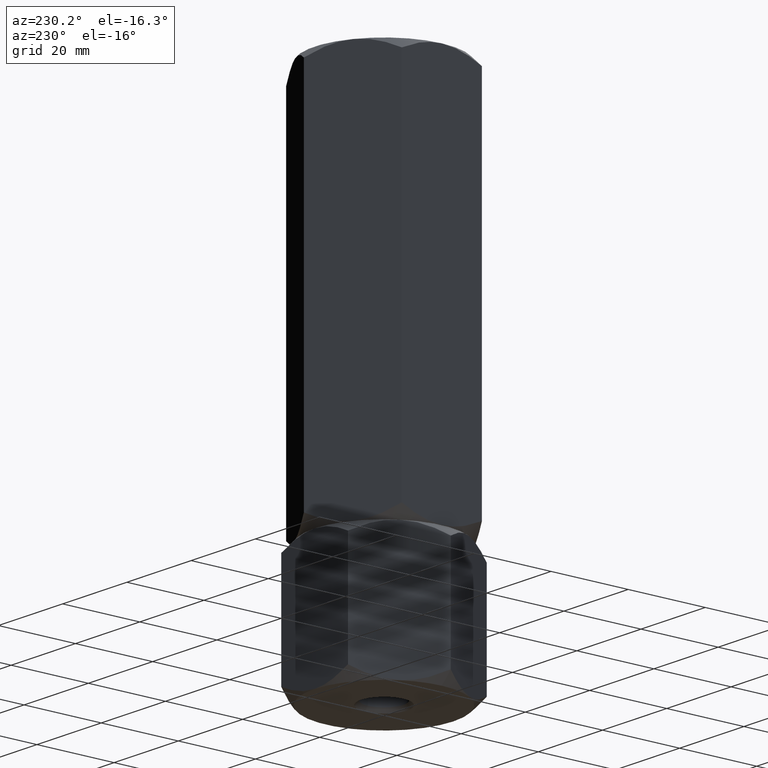
[diagram: clean part render]
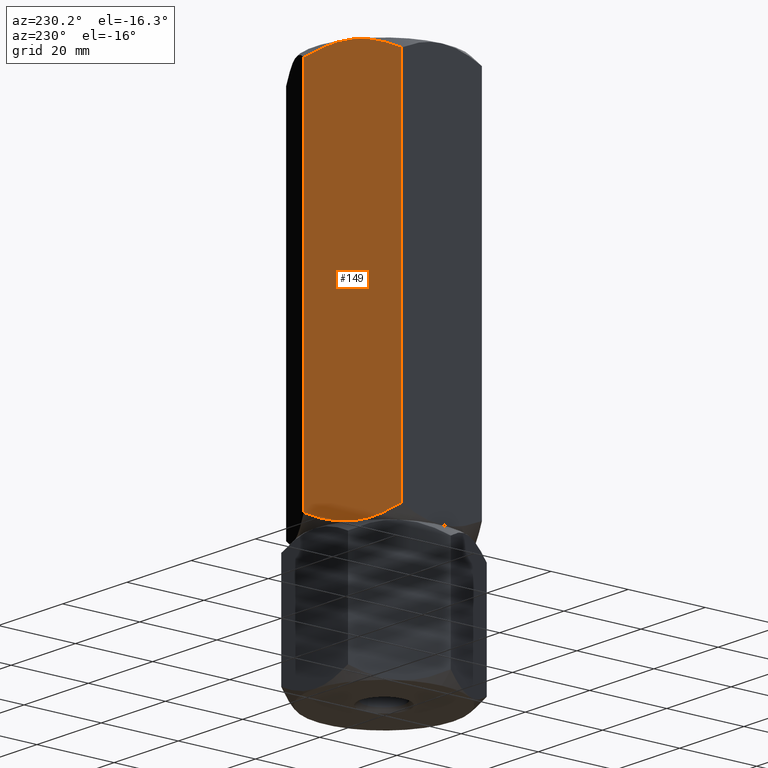
[diagram: same view with one face highlighted and labeled with its STEP entity id]
A machine part, auxiliary view. The second image highlights one B-rep face of the part: STEP entity #149.
In plain terms, the highlighted planar face has unit normal (0.5, -0.866, 0).
Its self-contained STEP definition (entity closure, byte-faithful):
#26 = CARTESIAN_POINT ( 'NONE',  ( -12.90267270303527525, 13.33524813246348373, 33.87041888916230903 ) ) ;
#77 = EDGE_CURVE ( 'NONE', #247, #1672, #545, .T. ) ;
#103 = EDGE_CURVE ( 'NONE', #1672, #1052, #774, .T. ) ;
#143 = CARTESIAN_POINT ( 'NONE',  ( -15.13928418966203360, 12.04393988858691600, 132.0607586318289748 ) ) ;
#149 = ADVANCED_FACE ( 'NONE', ( #882 ), #1330, .F. ) ;
#247 = VERTEX_POINT ( 'NONE', #1707 ) ;
#250 = CARTESIAN_POINT ( 'NONE',  ( -8.999999999999998224, 15.58845726811990318, 33.33333333333330017 ) ) ;
#257 = CARTESIAN_POINT ( 'NONE',  ( -16.59030399953601531, 11.20619321075669816, 131.3626120078502595 ) ) ;
#259 = ORIENTED_EDGE ( 'NONE', *, *, #1094, .F. ) ;
#260 = CARTESIAN_POINT ( 'NONE',  ( -1.409696000463985133, 19.97072132548311174, 35.30405465881634797 ) ) ;
#268 = B_SPLINE_CURVE_WITH_KNOTS ( 'NONE', 3,
 ( #1711, #456, #1565, #143, #257, #1556 ),
 .UNSPECIFIED., .F., .F.,
 ( 4, 2, 4 ),
 ( 0.01077282027732746547, 0.01612137750481872772, 0.02146993473230998997 ),
 .UNSPECIFIED. ) ;
#273 = ORIENTED_EDGE ( 'NONE', *, *, #708, .T. ) ;
#309 = ORIENTED_EDGE ( 'NONE', *, *, #103, .F. ) ;
#353 = CARTESIAN_POINT ( 'NONE',  ( -12.14199022028320130, 13.77442836864822695, 33.67389643558856704 ) ) ;
#382 = CARTESIAN_POINT ( 'NONE',  ( -5.895697476400522774, 17.38072716576609977, 33.60972924045488952 ) ) ;
#391 = CARTESIAN_POINT ( 'NONE',  ( -2.860715810337964626, 19.13297464765289035, 34.60590803483753319 ) ) ;
#423 = VECTOR ( 'NONE', #902, 1000.000000000000000 ) ;
#456 = CARTESIAN_POINT ( 'NONE',  ( -10.56546083169953576, 14.68463803553235536, 133.3333333333332860 ) ) ;
#501 = CARTESIAN_POINT ( 'NONE',  ( -8.605874323383766011, 15.81600583360882517, 133.3333333333332860 ) ) ;
#529 = CARTESIAN_POINT ( 'NONE',  ( -18.00000000000000355, 10.39230484541327293, 36.11794302415982116 ) ) ;
#545 = B_SPLINE_CURVE_WITH_KNOTS ( 'NONE', 3,
 ( #529, #1119, #1140, #26, #353, #649, #1286, #1778, #994, #1606 ),
 .UNSPECIFIED., .F., .F.,
 ( 4, 2, 2, 2, 4 ),
 ( 2.544307986796311447E-07, 0.005386537354063074268, 0.008079678815695273339, 0.009426249546511372007, 0.01077282027732747068 ),
 .UNSPECIFIED. ) ;
#616 = CARTESIAN_POINT ( 'NONE',  ( -1.925929944387235853E-30, 20.78460969082653165, 133.3333333333333144 ) ) ;
#636 = CARTESIAN_POINT ( 'NONE',  ( -7.023280245922044251, 16.72971695024924799, 133.1946107342347148 ) ) ;
#644 = CARTESIAN_POINT ( 'NONE',  ( -8.209538469370118108, 16.04483044561310479, 133.3160004768592160 ) ) ;
#649 = CARTESIAN_POINT ( 'NONE',  ( -10.97671975407795308, 14.44719758599054771, 33.47205593243188559 ) ) ;
#652 = CARTESIAN_POINT ( 'NONE',  ( -2.854601888853809832, 19.13650452186757533, 132.0559502554434346 ) ) ;
#656 = VECTOR ( 'NONE', #1332, 1000.000000000000000 ) ;
#691 = CARTESIAN_POINT ( 'NONE',  ( -18.00000000000000355, 10.39230484541327293, 133.3333333333333144 ) ) ;
#695 = DIRECTION ( 'NONE',  ( 0.4999999999999997224, -0.8660254037844388186, 0.000000000000000000 ) ) ;
#699 = LINE ( 'NONE', #691, #656 ) ;
#708 = EDGE_CURVE ( 'NONE', #1204, #1052, #891, .T. ) ;
#774 = B_SPLINE_CURVE_WITH_KNOTS ( 'NONE', 3,
 ( #250, #1158, #382, #391, #260, #1966 ),
 .UNSPECIFIED., .F., .F.,
 ( 4, 2, 4 ),
 ( 0.01077282027732747068, 0.01612137750481873466, 0.02146993473231000038 ),
 .UNSPECIFIED. ) ;
#794 = CARTESIAN_POINT ( 'NONE',  ( -1.411330396252047370, 19.96977770663491469, 131.3635556266983428 ) ) ;
#882 = FACE_OUTER_BOUND ( 'NONE', #950, .T. ) ;
#891 = LINE ( 'NONE', #616, #423 ) ;
#902 = DIRECTION ( 'NONE',  ( -0.000000000000000000, -0.000000000000000000, -1.000000000000000000 ) ) ;
#950 = EDGE_LOOP ( 'NONE', ( #1680, #273, #309, #1831, #1960, #259 ) ) ;
#953 = CARTESIAN_POINT ( 'NONE',  ( -7.415748492146447823, 16.50312530264321609, 133.2463864432151013 ) ) ;
#994 = CARTESIAN_POINT ( 'NONE',  ( -9.394125676616230436, 15.36090870263098118, 33.33333333333330728 ) ) ;
#1052 = VERTEX_POINT ( 'NONE', #1407 ) ;
#1090 = CARTESIAN_POINT ( 'NONE',  ( -5.858009779716799592, 17.40248616759158296, 132.9927702310780546 ) ) ;
#1094 = EDGE_CURVE ( 'NONE', #1938, #1423, #268, .T. ) ;
#1119 = CARTESIAN_POINT ( 'NONE',  ( -16.58866960374795596, 11.20713682960489166, 35.30311103996820776 ) ) ;
#1140 = CARTESIAN_POINT ( 'NONE',  ( -15.14539811114619283, 12.04041001437223635, 34.61071641122316578 ) ) ;
#1158 = CARTESIAN_POINT ( 'NONE',  ( -7.434539168300455358, 16.49227650070745099, 33.33333333333330017 ) ) ;
#1204 = VERTEX_POINT ( 'NONE', #1373 ) ;
#1286 = CARTESIAN_POINT ( 'NONE',  ( -10.58425150785354418, 14.67378923359658849, 33.42028022345146354 ) ) ;
#1292 = CARTESIAN_POINT ( 'NONE',  ( -5.097327296964720311, 17.84166640377632618, 132.7962477775042771 ) ) ;
#1294 = EDGE_CURVE ( 'NONE', #1204, #1938, #1780, .T. ) ;
#1301 = CARTESIAN_POINT ( 'NONE',  ( -18.00000000000000355, 10.39230484541327293, 130.5487236425067863 ) ) ;
#1330 = PLANE ( 'NONE',  #2055 ) ;
#1332 = DIRECTION ( 'NONE',  ( -0.000000000000000000, -0.000000000000000000, -1.000000000000000000 ) ) ;
#1337 = DIRECTION ( 'NONE',  ( 0.8660254037844388186, 0.4999999999999997224, 0.000000000000000000 ) ) ;
#1373 = CARTESIAN_POINT ( 'NONE',  ( 2.023902932232340556E-15, 20.78460969082653165, 130.5487236425067863 ) ) ;
#1407 = CARTESIAN_POINT ( 'NONE',  ( 8.283054731729360895E-16, 20.78460969082653165, 36.11794302415982116 ) ) ;
#1415 = EDGE_CURVE ( 'NONE', #1423, #247, #699, .T. ) ;
#1423 = VERTEX_POINT ( 'NONE', #1301 ) ;
#1556 = CARTESIAN_POINT ( 'NONE',  ( -18.00000000000000355, 10.39230484541327293, 130.5487236425067863 ) ) ;
#1565 = CARTESIAN_POINT ( 'NONE',  ( -12.10430252359947900, 13.79618737047371546, 133.0569374262117606 ) ) ;
#1586 = CARTESIAN_POINT ( 'NONE',  ( -8.999999999999998224, 15.58845726811990318, 33.33333333333330017 ) ) ;
#1606 = CARTESIAN_POINT ( 'NONE',  ( -8.999999999999998224, 15.58845726811990318, 33.33333333333330017 ) ) ;
#1672 = VERTEX_POINT ( 'NONE', #1586 ) ;
#1680 = ORIENTED_EDGE ( 'NONE', *, *, #1294, .F. ) ;
#1707 = CARTESIAN_POINT ( 'NONE',  ( -18.00000000000000355, 10.39230484541327293, 36.11794302415982116 ) ) ;
#1711 = CARTESIAN_POINT ( 'NONE',  ( -8.999999999999998224, 15.58845726811990318, 133.3333333333333144 ) ) ;
#1778 = CARTESIAN_POINT ( 'NONE',  ( -9.790461530629874787, 15.13208409062669979, 33.35066618980739861 ) ) ;
#1780 = B_SPLINE_CURVE_WITH_KNOTS ( 'NONE', 3,
 ( #2043, #794, #652, #1292, #1090, #636, #953, #644, #501, #1934 ),
 .UNSPECIFIED., .F., .F.,
 ( 4, 2, 2, 2, 4 ),
 ( 2.544307986824694462E-07, 0.005386537354063072533, 0.008079678815695268135, 0.009426249546511366803, 0.01077282027732746547 ),
 .UNSPECIFIED. ) ;
#1810 = CARTESIAN_POINT ( 'NONE',  ( -1.925929944387235853E-30, 20.78460969082653165, 133.3333333333333144 ) ) ;
#1831 = ORIENTED_EDGE ( 'NONE', *, *, #77, .F. ) ;
#1899 = CARTESIAN_POINT ( 'NONE',  ( -8.999999999999998224, 15.58845726811990318, 133.3333333333333144 ) ) ;
#1934 = CARTESIAN_POINT ( 'NONE',  ( -8.999999999999998224, 15.58845726811990318, 133.3333333333333144 ) ) ;
#1938 = VERTEX_POINT ( 'NONE', #1899 ) ;
#1960 = ORIENTED_EDGE ( 'NONE', *, *, #1415, .F. ) ;
#1966 = CARTESIAN_POINT ( 'NONE',  ( 8.283054731729360895E-16, 20.78460969082653165, 36.11794302415982116 ) ) ;
#2043 = CARTESIAN_POINT ( 'NONE',  ( 2.023902932232340556E-15, 20.78460969082653165, 130.5487236425067863 ) ) ;
#2055 = AXIS2_PLACEMENT_3D ( 'NONE', #1810, #695, #1337 ) ;